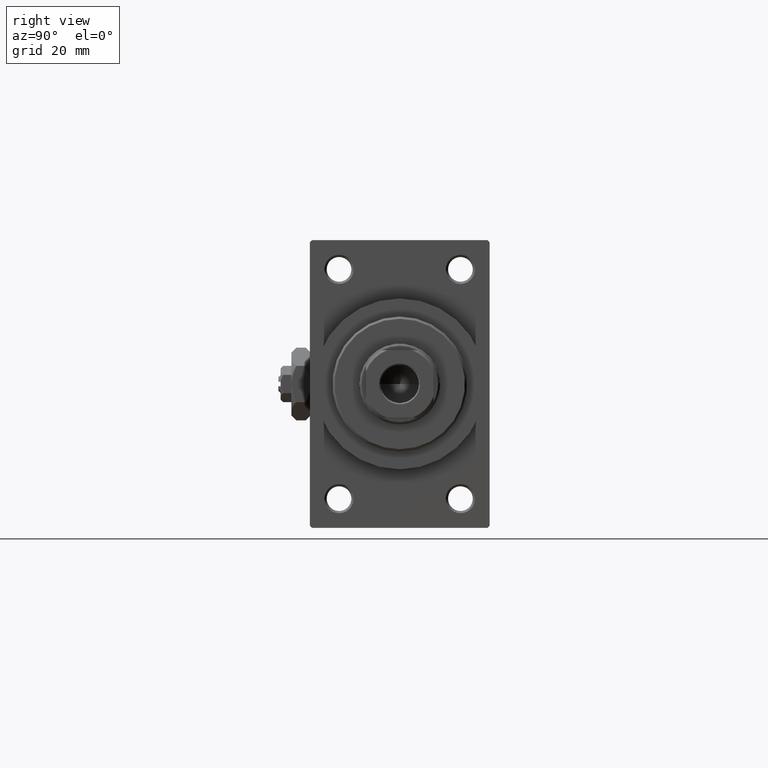
[diagram: clean part render]
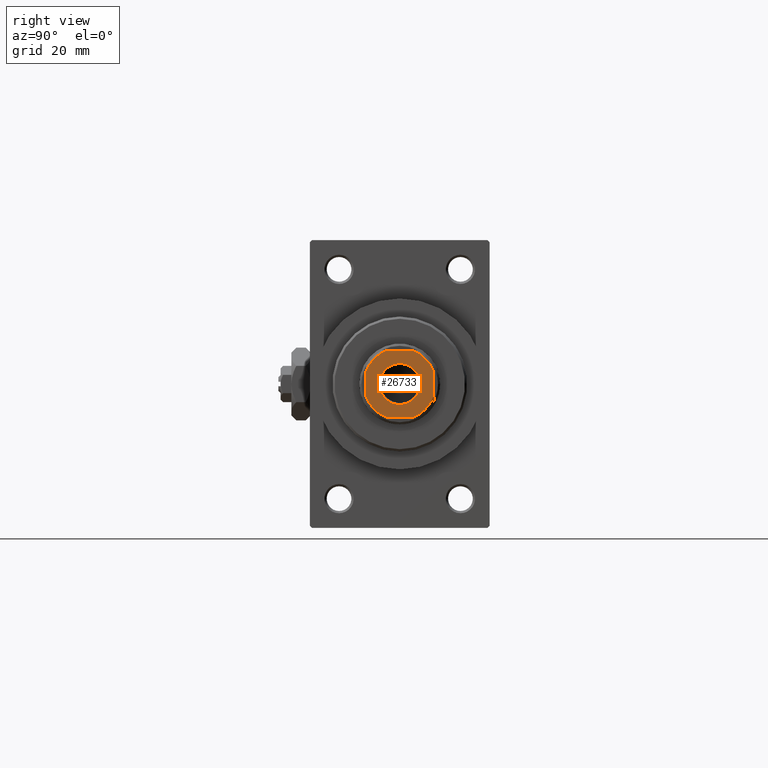
[diagram: same view with one face highlighted and labeled with its STEP entity id]
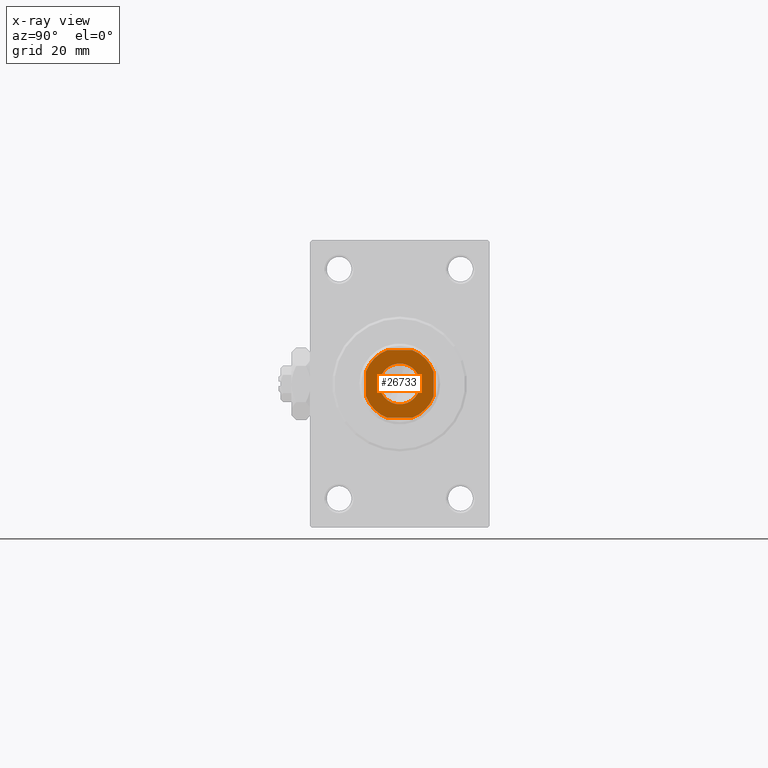
[diagram: x-ray of the same camera — body ghosted, the highlighted face saturated]
A machine part, right view. The second image highlights one B-rep face of the part: STEP entity #26733.
The next image is the same camera in x-ray: the body ghosted, the highlighted face saturated — about 0% of this face is hidden behind the body in this view.
In plain terms, the highlighted planar face has unit normal (1, 0, 0).
Its self-contained STEP definition (entity closure, byte-faithful):
#89 = CARTESIAN_POINT ( 'NONE',  ( 7.500000000000000000, 7.500000000000000000, 110.0000000000000000 ) ) ;
#621 = DIRECTION ( 'NONE',  ( -0.000000000000000000, 0.000000000000000000, 1.000000000000000000 ) ) ;
#623 = CARTESIAN_POINT ( 'NONE',  ( -7.499999999999997335, -2.783882181414887302, 110.0000000000000000 ) ) ;
#825 = AXIS2_PLACEMENT_3D ( 'NONE', #27988, #17401, #21350 ) ;
#878 = CARTESIAN_POINT ( 'NONE',  ( 2.783882181414688350, 7.499999999999999112, 110.0000000000000000 ) ) ;
#1044 = EDGE_CURVE ( 'NONE', #1153, #40725, #6824, .T. ) ;
#1153 = VERTEX_POINT ( 'NONE', #878 ) ;
#1197 = CARTESIAN_POINT ( 'NONE',  ( 0.000000000000000000, 0.000000000000000000, 110.0000000000000000 ) ) ;
#3222 = CIRCLE ( 'NONE', #825, 7.999999999999887201 ) ;
#3795 = CARTESIAN_POINT ( 'NONE',  ( -2.783882181414881973, -7.500000000000000000, 110.0000000000000000 ) ) ;
#4290 = CARTESIAN_POINT ( 'NONE',  ( -2.783882181414885082, 7.499999999999999112, 110.0000000000000000 ) ) ;
#4537 = VECTOR ( 'NONE', #40536, 1000.000000000000000 ) ;
#5019 = ORIENTED_EDGE ( 'NONE', *, *, #37488, .T. ) ;
#5533 = CIRCLE ( 'NONE', #19578, 4.549999999999998934 ) ;
#6006 = AXIS2_PLACEMENT_3D ( 'NONE', #44142, #14118, #44383 ) ;
#6356 = VERTEX_POINT ( 'NONE', #42610 ) ;
#6824 = LINE ( 'NONE', #44471, #4537 ) ;
#7342 = ORIENTED_EDGE ( 'NONE', *, *, #34918, .T. ) ;
#8830 = DIRECTION ( 'NONE',  ( 1.000000000000000000, 0.000000000000000000, 0.000000000000000000 ) ) ;
#10411 = EDGE_CURVE ( 'NONE', #14208, #22183, #24562, .T. ) ;
#10447 = LINE ( 'NONE', #14386, #30830 ) ;
#11165 = FACE_BOUND ( 'NONE', #17851, .T. ) ;
#11194 = ORIENTED_EDGE ( 'NONE', *, *, #1044, .T. ) ;
#11414 = DIRECTION ( 'NONE',  ( -0.000000000000000000, 0.000000000000000000, 1.000000000000000000 ) ) ;
#12654 = VERTEX_POINT ( 'NONE', #24624 ) ;
#13410 = DIRECTION ( 'NONE',  ( 1.000000000000000000, 0.000000000000000000, 0.000000000000000000 ) ) ;
#13561 = CARTESIAN_POINT ( 'NONE',  ( 7.500000000000000888, -2.783882181414683465, 110.0000000000000000 ) ) ;
#14118 = DIRECTION ( 'NONE',  ( 0.000000000000000000, -0.000000000000000000, -1.000000000000000000 ) ) ;
#14208 = VERTEX_POINT ( 'NONE', #48165 ) ;
#14370 = CARTESIAN_POINT ( 'NONE',  ( 0.000000000000000000, 0.000000000000000000, 110.0000000000000000 ) ) ;
#14386 = CARTESIAN_POINT ( 'NONE',  ( -7.500000000000000000, 7.499999999999998224, 110.0000000000000000 ) ) ;
#15013 = ORIENTED_EDGE ( 'NONE', *, *, #33013, .T. ) ;
#15106 = FACE_OUTER_BOUND ( 'NONE', #25459, .T. ) ;
#15930 = DIRECTION ( 'NONE',  ( 1.000000000000000000, 0.000000000000000000, 0.000000000000000000 ) ) ;
#16168 = CARTESIAN_POINT ( 'NONE',  ( -7.499999999999998224, -7.500000000000000000, 110.0000000000000000 ) ) ;
#17302 = AXIS2_PLACEMENT_3D ( 'NONE', #21037, #20061, #13410 ) ;
#17327 = ORIENTED_EDGE ( 'NONE', *, *, #22481, .T. ) ;
#17401 = DIRECTION ( 'NONE',  ( -0.000000000000000000, 0.000000000000000000, 1.000000000000000000 ) ) ;
#17851 = EDGE_LOOP ( 'NONE', ( #17327, #35786 ) ) ;
#18029 = ORIENTED_EDGE ( 'NONE', *, *, #20809, .T. ) ;
#18241 = DIRECTION ( 'NONE',  ( 1.000000000000000000, 0.000000000000000000, 0.000000000000000000 ) ) ;
#19328 = CARTESIAN_POINT ( 'NONE',  ( 0.000000000000000000, 0.000000000000000000, 110.0000000000000000 ) ) ;
#19578 = AXIS2_PLACEMENT_3D ( 'NONE', #22431, #40400, #18241 ) ;
#19664 = DIRECTION ( 'NONE',  ( -0.000000000000000000, 0.000000000000000000, 1.000000000000000000 ) ) ;
#20061 = DIRECTION ( 'NONE',  ( -0.000000000000000000, 0.000000000000000000, 1.000000000000000000 ) ) ;
#20809 = EDGE_CURVE ( 'NONE', #22183, #6356, #33798, .T. ) ;
#21037 = CARTESIAN_POINT ( 'NONE',  ( 0.000000000000000000, 0.000000000000000000, 110.0000000000000000 ) ) ;
#21350 = DIRECTION ( 'NONE',  ( 1.000000000000000000, 0.000000000000000000, 0.000000000000000000 ) ) ;
#21901 = CARTESIAN_POINT ( 'NONE',  ( 4.549999999999998934, 0.000000000000000000, 110.0000000000000000 ) ) ;
#21977 = ORIENTED_EDGE ( 'NONE', *, *, #44271, .T. ) ;
#22183 = VERTEX_POINT ( 'NONE', #13561 ) ;
#22431 = CARTESIAN_POINT ( 'NONE',  ( 0.000000000000000000, 0.000000000000000000, 110.0000000000000000 ) ) ;
#22481 = EDGE_CURVE ( 'NONE', #47219, #12654, #28750, .T. ) ;
#24562 = CIRCLE ( 'NONE', #37909, 7.999999999999887201 ) ;
#24624 = CARTESIAN_POINT ( 'NONE',  ( -4.549999999999998934, 5.572142936120455355E-16, 110.0000000000000000 ) ) ;
#25459 = EDGE_LOOP ( 'NONE', ( #18029, #34979, #11194, #5019, #7342, #15013, #21977, #40239 ) ) ;
#25935 = CARTESIAN_POINT ( 'NONE',  ( -7.499999999999999112, 2.783882181414884638, 110.0000000000000000 ) ) ;
#26552 = AXIS2_PLACEMENT_3D ( 'NONE', #14370, #11414, #45131 ) ;
#26733 = ADVANCED_FACE ( 'NONE', ( #11165, #15106 ), #37484, .T. ) ;
#27988 = CARTESIAN_POINT ( 'NONE',  ( 0.000000000000000000, 0.000000000000000000, 110.0000000000000000 ) ) ;
#28750 = CIRCLE ( 'NONE', #6006, 4.549999999999998934 ) ;
#30830 = VECTOR ( 'NONE', #39747, 1000.000000000000000 ) ;
#33013 = EDGE_CURVE ( 'NONE', #33876, #35907, #38529, .T. ) ;
#33574 = EDGE_CURVE ( 'NONE', #6356, #1153, #3222, .T. ) ;
#33798 = LINE ( 'NONE', #89, #42194 ) ;
#33876 = VERTEX_POINT ( 'NONE', #623 ) ;
#34328 = DIRECTION ( 'NONE',  ( 1.000000000000000000, 0.000000000000000000, 0.000000000000000000 ) ) ;
#34918 = EDGE_CURVE ( 'NONE', #35833, #33876, #10447, .T. ) ;
#34979 = ORIENTED_EDGE ( 'NONE', *, *, #33574, .T. ) ;
#35378 = CIRCLE ( 'NONE', #47982, 7.999999999999954703 ) ;
#35786 = ORIENTED_EDGE ( 'NONE', *, *, #37904, .T. ) ;
#35833 = VERTEX_POINT ( 'NONE', #25935 ) ;
#35834 = LINE ( 'NONE', #16168, #36257 ) ;
#35907 = VERTEX_POINT ( 'NONE', #3795 ) ;
#36257 = VECTOR ( 'NONE', #15930, 1000.000000000000000 ) ;
#37484 = PLANE ( 'NONE',  #26552 ) ;
#37488 = EDGE_CURVE ( 'NONE', #40725, #35833, #35378, .T. ) ;
#37904 = EDGE_CURVE ( 'NONE', #12654, #47219, #5533, .T. ) ;
#37909 = AXIS2_PLACEMENT_3D ( 'NONE', #1197, #19664, #8830 ) ;
#38529 = CIRCLE ( 'NONE', #17302, 7.999999999999954703 ) ;
#39747 = DIRECTION ( 'NONE',  ( 1.156482317317871725E-16, -1.000000000000000000, 0.000000000000000000 ) ) ;
#40239 = ORIENTED_EDGE ( 'NONE', *, *, #10411, .T. ) ;
#40400 = DIRECTION ( 'NONE',  ( 0.000000000000000000, -0.000000000000000000, -1.000000000000000000 ) ) ;
#40536 = DIRECTION ( 'NONE',  ( -1.000000000000000000, -1.156482317317871478E-16, -0.000000000000000000 ) ) ;
#40725 = VERTEX_POINT ( 'NONE', #4290 ) ;
#42194 = VECTOR ( 'NONE', #48585, 1000.000000000000000 ) ;
#42610 = CARTESIAN_POINT ( 'NONE',  ( 7.500000000000000888, 2.783882181414685686, 110.0000000000000000 ) ) ;
#44142 = CARTESIAN_POINT ( 'NONE',  ( 0.000000000000000000, 0.000000000000000000, 110.0000000000000000 ) ) ;
#44271 = EDGE_CURVE ( 'NONE', #35907, #14208, #35834, .T. ) ;
#44383 = DIRECTION ( 'NONE',  ( 1.000000000000000000, 0.000000000000000000, 0.000000000000000000 ) ) ;
#44471 = CARTESIAN_POINT ( 'NONE',  ( -7.500000000000000000, 7.499999999999998224, 110.0000000000000000 ) ) ;
#45131 = DIRECTION ( 'NONE',  ( 1.000000000000000000, 0.000000000000000000, 0.000000000000000000 ) ) ;
#47219 = VERTEX_POINT ( 'NONE', #21901 ) ;
#47982 = AXIS2_PLACEMENT_3D ( 'NONE', #19328, #621, #34328 ) ;
#48165 = CARTESIAN_POINT ( 'NONE',  ( 2.783882181414686574, -7.500000000000000000, 110.0000000000000000 ) ) ;
#48585 = DIRECTION ( 'NONE',  ( -1.156482317317871478E-16, 1.000000000000000000, -0.000000000000000000 ) ) ;